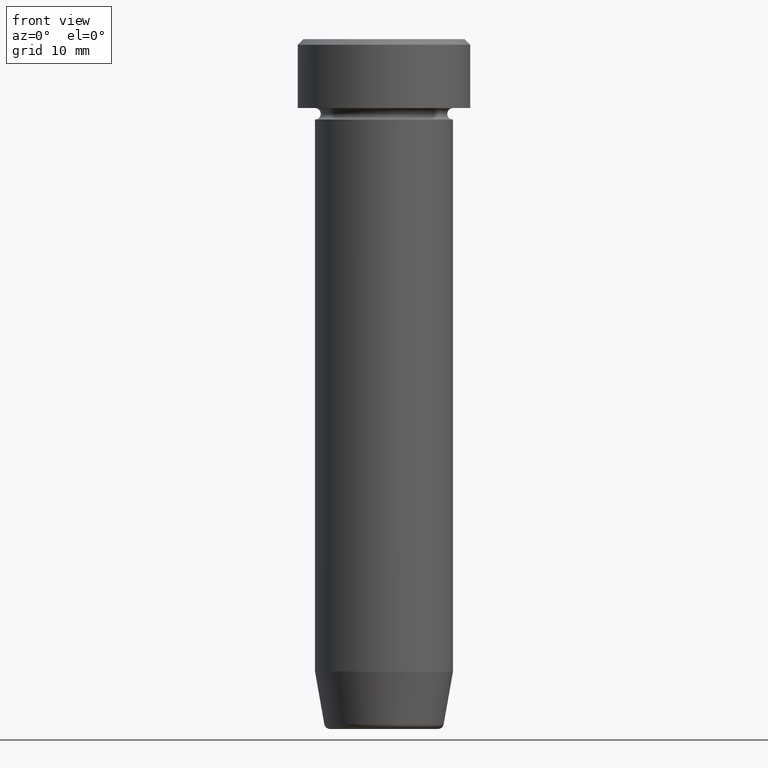
[diagram: clean part render]
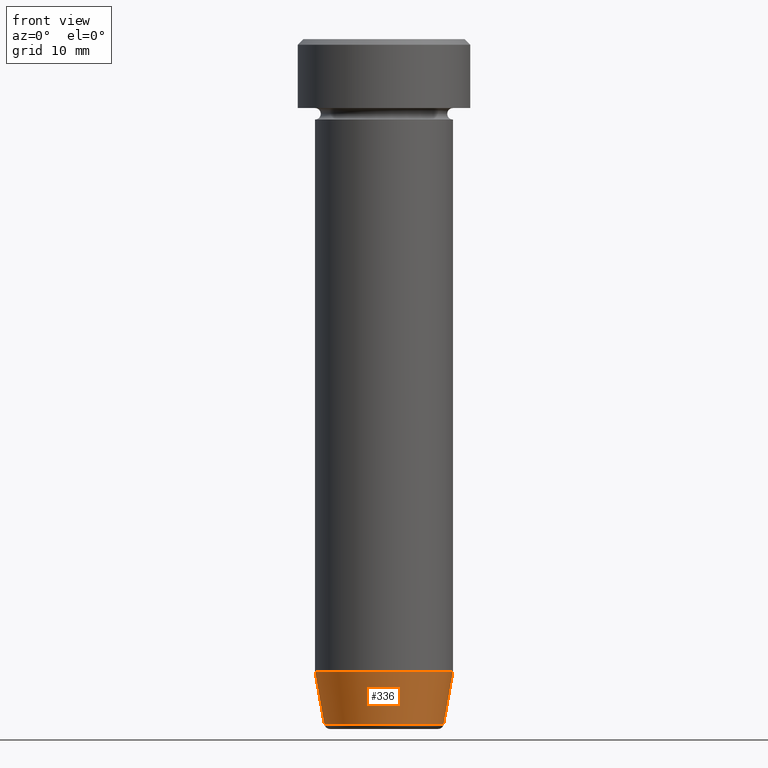
[diagram: same view with one face highlighted and labeled with its STEP entity id]
A machine part, front view. The second image highlights one B-rep face of the part: STEP entity #336.
In plain terms, the highlighted conical surface has half-angle 10 deg.
Its self-contained STEP definition (entity closure, byte-faithful):
#27 = CARTESIAN_POINT ( 'NONE',  ( 0.000000000000000000, 0.000000000000000000, -60.00000000000000000 ) ) ;
#30 = CONICAL_SURFACE ( 'NONE', #53, 5.118365096457674568, 0.1745329251994331143 ) ;
#41 = EDGE_CURVE ( 'NONE', #243, #154, #197, .T. ) ;
#47 = VERTEX_POINT ( 'NONE', #90 ) ;
#53 = AXIS2_PLACEMENT_3D ( 'NONE', #27, #583, #173 ) ;
#89 = ORIENTED_EDGE ( 'NONE', *, *, #376, .T. ) ;
#90 = CARTESIAN_POINT ( 'NONE',  ( -5.191219157375141613, 6.852645359818003952E-16, -59.58682408883346682 ) ) ;
#100 = DIRECTION ( 'NONE',  ( 0.1736481776669305255, 0.000000000000000000, 0.9848077530122081313 ) ) ;
#117 = DIRECTION ( 'NONE',  ( -0.1736481776669305255, 2.126576849575773764E-17, 0.9848077530122081313 ) ) ;
#139 = ORIENTED_EDGE ( 'NONE', *, *, #171, .F. ) ;
#145 = CARTESIAN_POINT ( 'NONE',  ( 6.000000000000000000, 0.000000000000000000, -55.00000000000000000 ) ) ;
#154 = VERTEX_POINT ( 'NONE', #145 ) ;
#171 = EDGE_CURVE ( 'NONE', #290, #154, #548, .T. ) ;
#173 = DIRECTION ( 'NONE',  ( 1.000000000000000000, 0.000000000000000000, 0.000000000000000000 ) ) ;
#197 = LINE ( 'NONE', #526, #405 ) ;
#240 = CARTESIAN_POINT ( 'NONE',  ( 0.000000000000000000, 0.000000000000000000, -55.00000000000000000 ) ) ;
#243 = VERTEX_POINT ( 'NONE', #425 ) ;
#257 = EDGE_CURVE ( 'NONE', #47, #290, #265, .T. ) ;
#265 = LINE ( 'NONE', #501, #276 ) ;
#276 = VECTOR ( 'NONE', #117, 999.9999999999998863 ) ;
#290 = VERTEX_POINT ( 'NONE', #314 ) ;
#304 = ORIENTED_EDGE ( 'NONE', *, *, #257, .F. ) ;
#314 = CARTESIAN_POINT ( 'NONE',  ( -6.000000000000000000, 7.347880794884119736E-16, -55.00000000000000000 ) ) ;
#317 = AXIS2_PLACEMENT_3D ( 'NONE', #240, #597, #377 ) ;
#336 = ADVANCED_FACE ( 'NONE', ( #374 ), #30, .T. ) ;
#367 = DIRECTION ( 'NONE',  ( -0.000000000000000000, -0.000000000000000000, 1.000000000000000000 ) ) ;
#374 = FACE_OUTER_BOUND ( 'NONE', #401, .T. ) ;
#376 = EDGE_CURVE ( 'NONE', #47, #243, #575, .T. ) ;
#377 = DIRECTION ( 'NONE',  ( 1.000000000000000000, 0.000000000000000000, 0.000000000000000000 ) ) ;
#401 = EDGE_LOOP ( 'NONE', ( #304, #89, #524, #139 ) ) ;
#405 = VECTOR ( 'NONE', #100, 999.9999999999998863 ) ;
#425 = CARTESIAN_POINT ( 'NONE',  ( 5.191219157375141613, 0.000000000000000000, -59.58682408883346682 ) ) ;
#481 = CARTESIAN_POINT ( 'NONE',  ( 0.000000000000000000, 0.000000000000000000, -59.58682408883346682 ) ) ;
#501 = CARTESIAN_POINT ( 'NONE',  ( -5.118365096457674568, 6.268189432244425142E-16, -60.00000000000000000 ) ) ;
#513 = DIRECTION ( 'NONE',  ( -1.000000000000000000, 0.000000000000000000, 0.000000000000000000 ) ) ;
#524 = ORIENTED_EDGE ( 'NONE', *, *, #41, .T. ) ;
#526 = CARTESIAN_POINT ( 'NONE',  ( 5.118365096457674568, 0.000000000000000000, -60.00000000000000000 ) ) ;
#548 = CIRCLE ( 'NONE', #317, 6.000000000000000000 ) ;
#568 = AXIS2_PLACEMENT_3D ( 'NONE', #481, #367, #513 ) ;
#575 = CIRCLE ( 'NONE', #568, 5.191219157375140725 ) ;
#583 = DIRECTION ( 'NONE',  ( -0.000000000000000000, -0.000000000000000000, 1.000000000000000000 ) ) ;
#597 = DIRECTION ( 'NONE',  ( -0.000000000000000000, -0.000000000000000000, 1.000000000000000000 ) ) ;